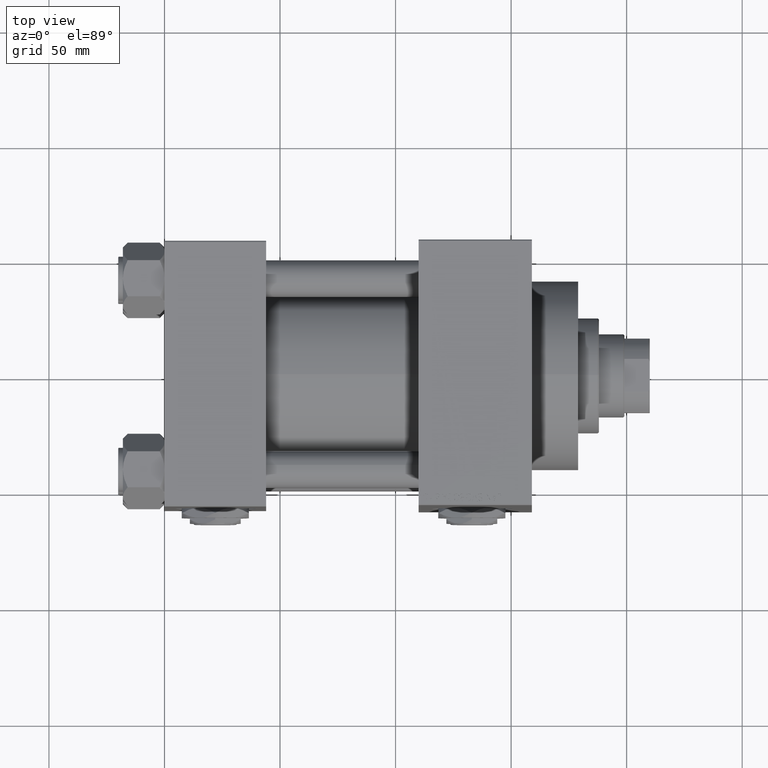
[diagram: clean part render]
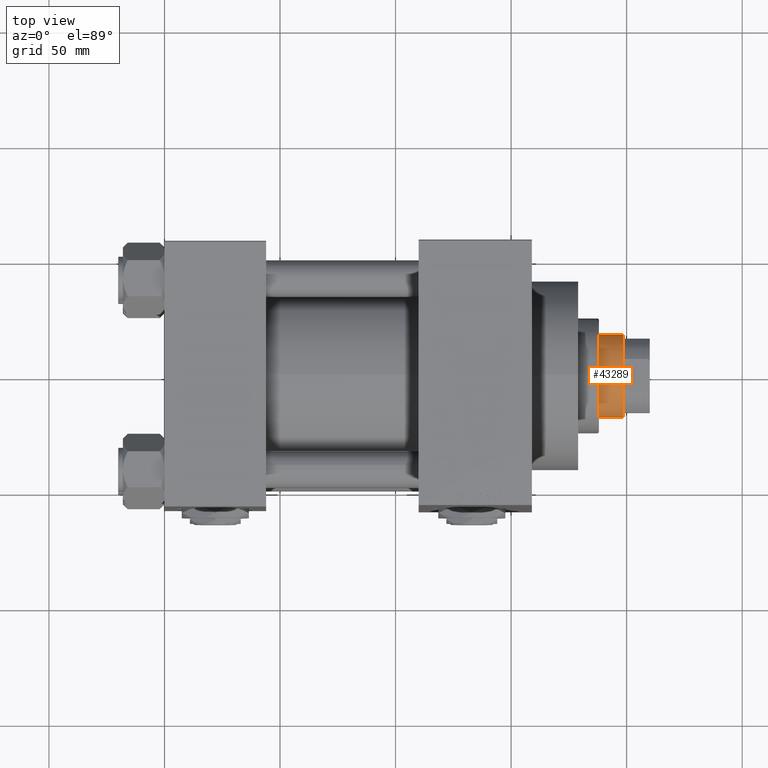
[diagram: same view with one face highlighted and labeled with its STEP entity id]
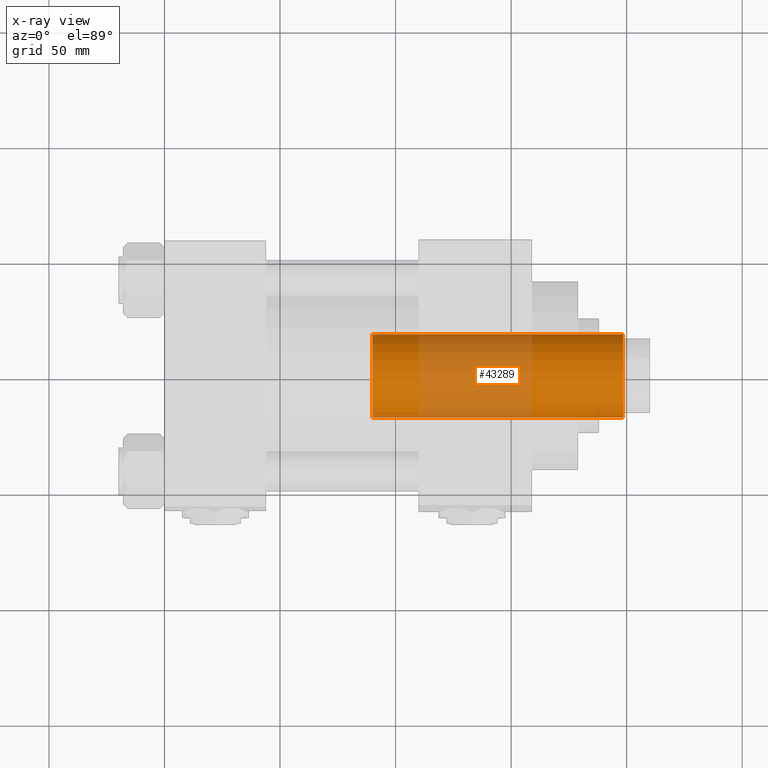
[diagram: x-ray of the same camera — body ghosted, the highlighted face saturated]
A machine part, top view. The second image highlights one B-rep face of the part: STEP entity #43289.
The next image is the same camera in x-ray: the body ghosted, the highlighted face saturated — about 47% of this face is hidden behind the body in this view.
In plain terms, the highlighted cylindrical surface (partial cylindrical patch) has radius 18 mm, axis along (-1, 0, 0).
Its self-contained STEP definition (entity closure, byte-faithful):
#2489 = CARTESIAN_POINT ( 'NONE',  ( -18.00000000000000000, 0.000000000000000000, 154.4999999999999716 ) ) ;
#3579 = DIRECTION ( 'NONE',  ( 0.000000000000000000, 0.000000000000000000, -1.000000000000000000 ) ) ;
#4937 = DIRECTION ( 'NONE',  ( 1.000000000000000000, 0.000000000000000000, 0.000000000000000000 ) ) ;
#5688 = DIRECTION ( 'NONE',  ( -1.000000000000000000, 0.000000000000000000, 0.000000000000000000 ) ) ;
#6052 = CARTESIAN_POINT ( 'NONE',  ( -18.00000000000000000, 0.000000000000000000, 155.0000000000000000 ) ) ;
#6366 = AXIS2_PLACEMENT_3D ( 'NONE', #35300, #3579, #23714 ) ;
#6530 = EDGE_CURVE ( 'NONE', #31863, #37810, #7545, .T. ) ;
#6907 = ORIENTED_EDGE ( 'NONE', *, *, #47937, .T. ) ;
#6984 = EDGE_CURVE ( 'NONE', #16326, #37810, #41999, .T. ) ;
#7545 = CIRCLE ( 'NONE', #20411, 18.00000000000000000 ) ;
#9466 = AXIS2_PLACEMENT_3D ( 'NONE', #32132, #28346, #5688 ) ;
#11691 = ORIENTED_EDGE ( 'NONE', *, *, #6530, .T. ) ;
#11897 = ORIENTED_EDGE ( 'NONE', *, *, #6984, .F. ) ;
#13200 = CYLINDRICAL_SURFACE ( 'NONE', #9466, 18.00000000000000000 ) ;
#13448 = FACE_OUTER_BOUND ( 'NONE', #38486, .T. ) ;
#16326 = VERTEX_POINT ( 'NONE', #27405 ) ;
#20411 = AXIS2_PLACEMENT_3D ( 'NONE', #31862, #38902, #4937 ) ;
#21394 = DIRECTION ( 'NONE',  ( -0.000000000000000000, -0.000000000000000000, -1.000000000000000000 ) ) ;
#23714 = DIRECTION ( 'NONE',  ( 1.000000000000000000, 0.000000000000000000, 0.000000000000000000 ) ) ;
#24461 = VECTOR ( 'NONE', #34948, 1000.000000000000000 ) ;
#26175 = VERTEX_POINT ( 'NONE', #2489 ) ;
#27405 = CARTESIAN_POINT ( 'NONE',  ( 18.00000000000000000, 2.204364238465235428E-15, 154.4999999999999716 ) ) ;
#28346 = DIRECTION ( 'NONE',  ( -0.000000000000000000, -0.000000000000000000, -1.000000000000000000 ) ) ;
#29645 = CIRCLE ( 'NONE', #6366, 18.00000000000000000 ) ;
#31862 = CARTESIAN_POINT ( 'NONE',  ( 0.000000000000000000, 0.000000000000000000, 46.00000000000000000 ) ) ;
#31863 = VERTEX_POINT ( 'NONE', #33101 ) ;
#32017 = ORIENTED_EDGE ( 'NONE', *, *, #32219, .T. ) ;
#32132 = CARTESIAN_POINT ( 'NONE',  ( 0.000000000000000000, 0.000000000000000000, 155.0000000000000000 ) ) ;
#32219 = EDGE_CURVE ( 'NONE', #26175, #31863, #36744, .T. ) ;
#33101 = CARTESIAN_POINT ( 'NONE',  ( -18.00000000000000000, 0.000000000000000000, 46.00000000000000000 ) ) ;
#34948 = DIRECTION ( 'NONE',  ( -0.000000000000000000, -0.000000000000000000, -1.000000000000000000 ) ) ;
#35300 = CARTESIAN_POINT ( 'NONE',  ( 0.000000000000000000, 0.000000000000000000, 154.4999999999999716 ) ) ;
#36744 = LINE ( 'NONE', #6052, #38361 ) ;
#37810 = VERTEX_POINT ( 'NONE', #47811 ) ;
#38361 = VECTOR ( 'NONE', #21394, 1000.000000000000000 ) ;
#38486 = EDGE_LOOP ( 'NONE', ( #11897, #6907, #32017, #11691 ) ) ;
#38902 = DIRECTION ( 'NONE',  ( 0.000000000000000000, 0.000000000000000000, 1.000000000000000000 ) ) ;
#41999 = LINE ( 'NONE', #49554, #24461 ) ;
#43289 = ADVANCED_FACE ( 'NONE', ( #13448 ), #13200, .T. ) ;
#47811 = CARTESIAN_POINT ( 'NONE',  ( 18.00000000000000000, 2.204364238465235428E-15, 46.00000000000000000 ) ) ;
#47937 = EDGE_CURVE ( 'NONE', #16326, #26175, #29645, .T. ) ;
#49554 = CARTESIAN_POINT ( 'NONE',  ( 18.00000000000000000, 2.204364238465235428E-15, 155.0000000000000000 ) ) ;